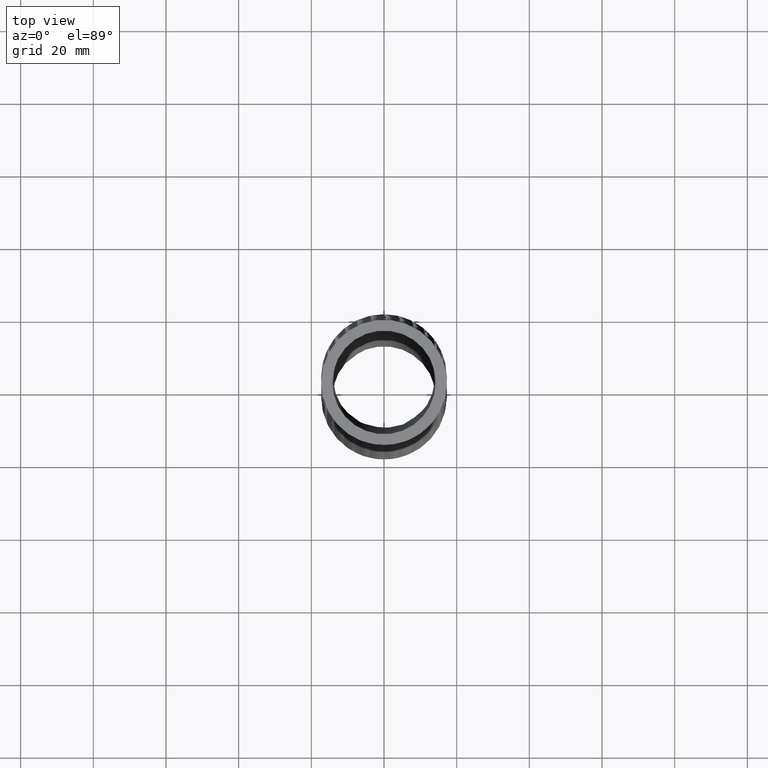
[diagram: clean part render]
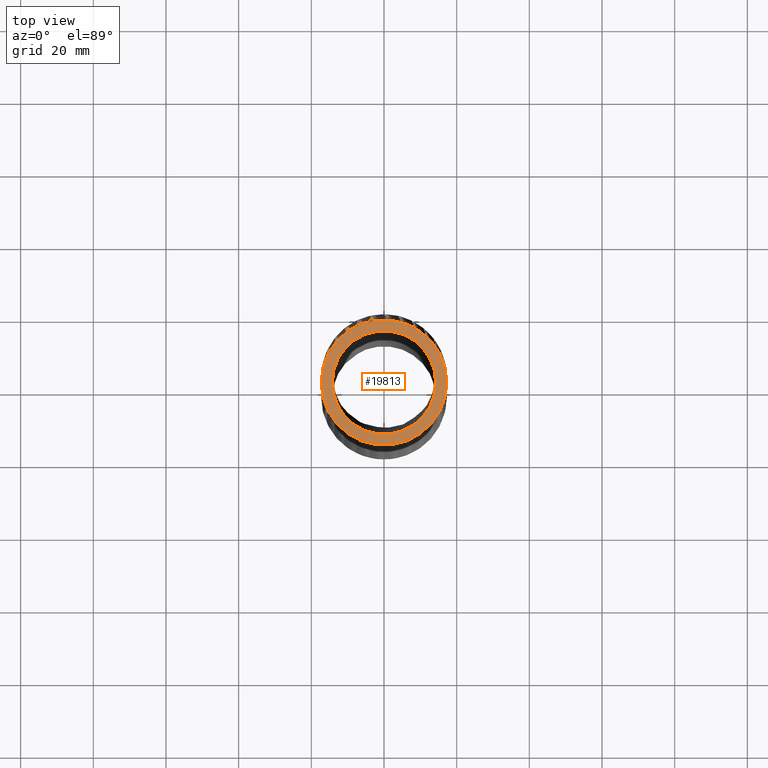
[diagram: same view with one face highlighted and labeled with its STEP entity id]
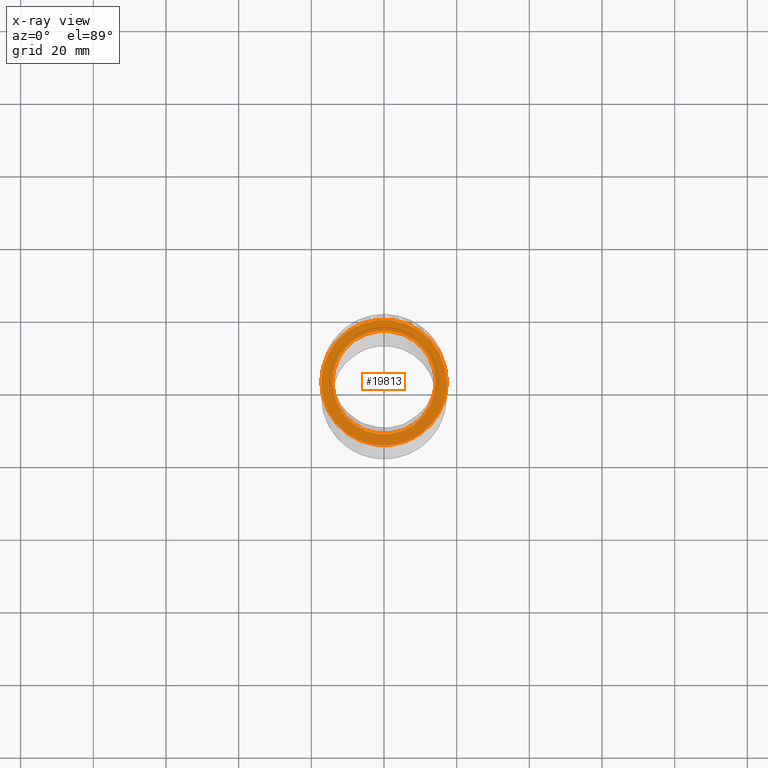
[diagram: x-ray of the same camera — body ghosted, the highlighted face saturated]
A machine part, top view. The second image highlights one B-rep face of the part: STEP entity #19813.
The next image is the same camera in x-ray: the body ghosted, the highlighted face saturated — about 0% of this face is hidden behind the body in this view.
In plain terms, the highlighted planar face has unit normal (0, 0, 1).
Its self-contained STEP definition (entity closure, byte-faithful):
#182 = ORIENTED_EDGE ( 'NONE', *, *, #201, .F. ) ;
#201 = EDGE_CURVE ( 'NONE', #4870, #4654, #12854, .T. ) ;
#357 = ORIENTED_EDGE ( 'NONE', *, *, #4652, .F. ) ;
#3451 = CARTESIAN_POINT ( 'NONE',  ( 0.0000000000000000000, 0.0000000000000000000, 0.0000000000000000000 ) ) ;
#3566 = DIRECTION ( 'NONE',  ( 1.000000000000000000, 0.0000000000000000000, 0.0000000000000000000 ) ) ;
#3567 = DIRECTION ( 'NONE',  ( 0.0000000000000000000, 0.0000000000000000000, 1.000000000000000000 ) ) ;
#3568 = AXIS2_PLACEMENT_3D ( 'NONE', #3451, #3567, #3566 ) ;
#3569 = CIRCLE ( 'NONE', #3568, 0.6799999999999999400 ) ;
#3716 = FACE_OUTER_BOUND ( 'NONE', #21454, .T. ) ;
#3717 = FACE_BOUND ( 'NONE', #19855, .T. ) ;
#3864 = DIRECTION ( 'NONE',  ( 1.000000000000000000, 0.0000000000000000000, 0.0000000000000000000 ) ) ;
#3865 = DIRECTION ( 'NONE',  ( 0.0000000000000000000, 0.0000000000000000000, 1.000000000000000000 ) ) ;
#3866 = CARTESIAN_POINT ( 'NONE',  ( 0.0000000000000000000, 0.0000000000000000000, 0.0000000000000000000 ) ) ;
#3867 = AXIS2_PLACEMENT_3D ( 'NONE', #3866, #3865, #3864 ) ;
#3870 = PLANE ( 'NONE',  #3867 ) ;
#4652 = EDGE_CURVE ( 'NONE', #4654, #4870, #8584, .T. ) ;
#4654 = VERTEX_POINT ( 'NONE', #8579 ) ;
#4870 = VERTEX_POINT ( 'NONE', #9413 ) ;
#4909 = VERTEX_POINT ( 'NONE', #9706 ) ;
#4949 = EDGE_CURVE ( 'NONE', #4909, #4961, #10032, .T. ) ;
#4961 = VERTEX_POINT ( 'NONE', #10178 ) ;
#8579 = CARTESIAN_POINT ( 'NONE',  ( 0.5600000000000000500, 0.0000000000000000000, 0.0000000000000000000 ) ) ;
#8580 = DIRECTION ( 'NONE',  ( 1.000000000000000000, 0.0000000000000000000, 0.0000000000000000000 ) ) ;
#8581 = DIRECTION ( 'NONE',  ( 0.0000000000000000000, 0.0000000000000000000, 1.000000000000000000 ) ) ;
#8582 = CARTESIAN_POINT ( 'NONE',  ( 0.0000000000000000000, 0.0000000000000000000, 0.0000000000000000000 ) ) ;
#8583 = AXIS2_PLACEMENT_3D ( 'NONE', #8582, #8581, #8580 ) ;
#8584 = CIRCLE ( 'NONE', #8583, 0.5600000000000000500 ) ;
#9413 = CARTESIAN_POINT ( 'NONE',  ( -0.5600000000000000500, 6.858022075225177600E-017, 0.0000000000000000000 ) ) ;
#9706 = CARTESIAN_POINT ( 'NONE',  ( -0.6799999999999999400, 8.327598234202001900E-017, 0.0000000000000000000 ) ) ;
#10028 = DIRECTION ( 'NONE',  ( 1.000000000000000000, 0.0000000000000000000, 0.0000000000000000000 ) ) ;
#10029 = DIRECTION ( 'NONE',  ( 0.0000000000000000000, 0.0000000000000000000, 1.000000000000000000 ) ) ;
#10030 = CARTESIAN_POINT ( 'NONE',  ( 0.0000000000000000000, 0.0000000000000000000, 0.0000000000000000000 ) ) ;
#10031 = AXIS2_PLACEMENT_3D ( 'NONE', #10030, #10029, #10028 ) ;
#10032 = CIRCLE ( 'NONE', #10031, 0.6799999999999999400 ) ;
#10178 = CARTESIAN_POINT ( 'NONE',  ( 0.6799999999999999400, 0.0000000000000000000, 0.0000000000000000000 ) ) ;
#12854 = CIRCLE ( 'NONE', #12895, 0.5600000000000000500 ) ;
#12889 = DIRECTION ( 'NONE',  ( 1.000000000000000000, 0.0000000000000000000, 0.0000000000000000000 ) ) ;
#12892 = DIRECTION ( 'NONE',  ( 0.0000000000000000000, 0.0000000000000000000, 1.000000000000000000 ) ) ;
#12894 = CARTESIAN_POINT ( 'NONE',  ( 0.0000000000000000000, 0.0000000000000000000, 0.0000000000000000000 ) ) ;
#12895 = AXIS2_PLACEMENT_3D ( 'NONE', #12894, #12892, #12889 ) ;
#18135 = EDGE_CURVE ( 'NONE', #4961, #4909, #3569, .T. ) ;
#19813 = ADVANCED_FACE ( 'NONE', ( #3717, #3716 ), #3870, .T. ) ;
#19855 = EDGE_LOOP ( 'NONE', ( #357, #182 ) ) ;
#21454 = EDGE_LOOP ( 'NONE', ( #21540, #21464 ) ) ;
#21464 = ORIENTED_EDGE ( 'NONE', *, *, #4949, .T. ) ;
#21540 = ORIENTED_EDGE ( 'NONE', *, *, #18135, .T. ) ;